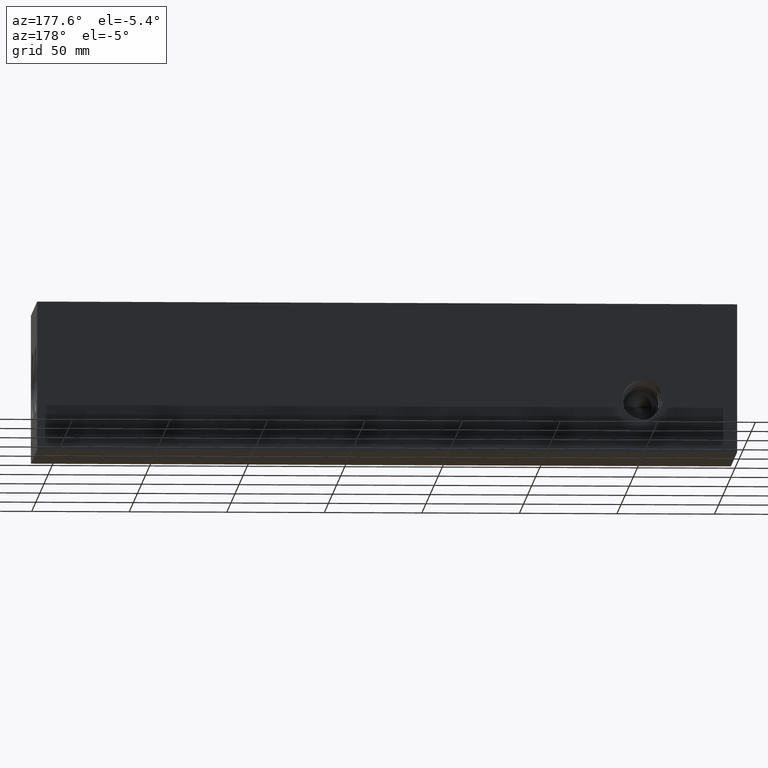
[diagram: clean part render]
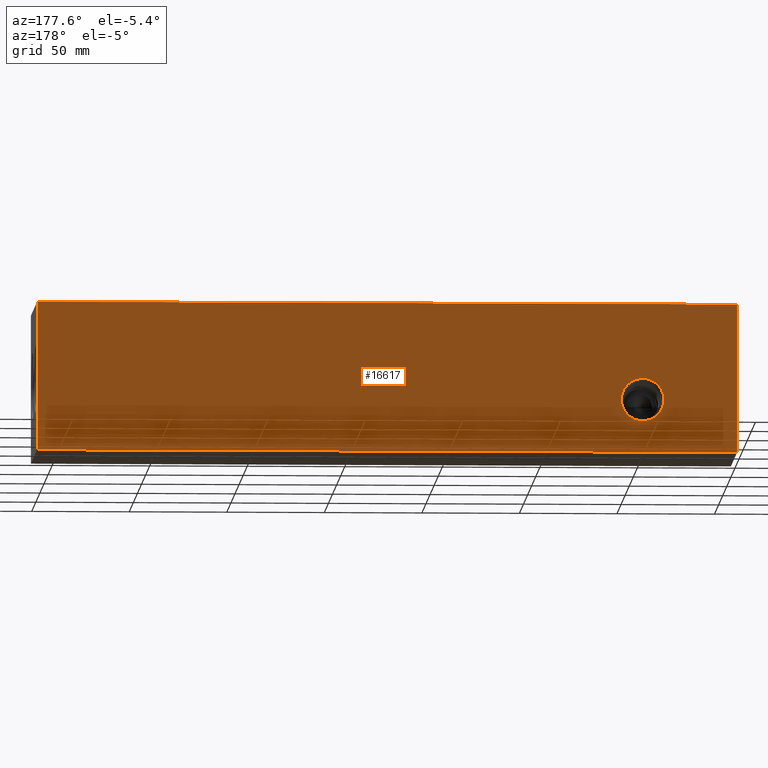
[diagram: same view with one face highlighted and labeled with its STEP entity id]
A machine part, auxiliary view. The second image highlights one B-rep face of the part: STEP entity #16617.
In plain terms, the highlighted planar face has unit normal (0, 1, 0).
Its self-contained STEP definition (entity closure, byte-faithful):
#280=CIRCLE('',#17066,10.9093);
#281=CIRCLE('',#17067,10.9093);
#865=FACE_BOUND('',#3311,.T.);
#2319=FACE_OUTER_BOUND('',#3310,.T.);
#3310=EDGE_LOOP('',(#14652,#14653,#14654,#14655));
#3311=EDGE_LOOP('',(#14656,#14657));
#4473=LINE('',#26952,#5913);
#4533=LINE('',#27225,#5973);
#4790=LINE('',#28782,#6230);
#4791=LINE('',#28783,#6231);
#5913=VECTOR('',#19706,10.);
#5973=VECTOR('',#19820,10.);
#6230=VECTOR('',#21599,10.);
#6231=VECTOR('',#21600,10.);
#7234=VERTEX_POINT('',#26949);
#7235=VERTEX_POINT('',#26951);
#7292=VERTEX_POINT('',#27221);
#7293=VERTEX_POINT('',#27223);
#7318=VERTEX_POINT('',#27292);
#7319=VERTEX_POINT('',#27293);
#9326=EDGE_CURVE('',#7234,#7235,#4473,.T.);
#9410=EDGE_CURVE('',#7292,#7293,#4533,.T.);
#9443=EDGE_CURVE('',#7318,#7319,#280,.T.);
#9444=EDGE_CURVE('',#7319,#7318,#281,.T.);
#10136=EDGE_CURVE('',#7234,#7292,#4790,.T.);
#10137=EDGE_CURVE('',#7235,#7293,#4791,.T.);
#14652=ORIENTED_EDGE('',*,*,#10136,.T.);
#14653=ORIENTED_EDGE('',*,*,#9410,.T.);
#14654=ORIENTED_EDGE('',*,*,#10137,.F.);
#14655=ORIENTED_EDGE('',*,*,#9326,.F.);
#14656=ORIENTED_EDGE('',*,*,#9443,.T.);
#14657=ORIENTED_EDGE('',*,*,#9444,.T.);
#15193=PLANE('',#17808);
#16617=ADVANCED_FACE('',(#2319,#865),#15193,.T.);
#17066=AXIS2_PLACEMENT_3D('',#27294,#19881,#19882);
#17067=AXIS2_PLACEMENT_3D('',#27295,#19883,#19884);
#17808=AXIS2_PLACEMENT_3D('',#28781,#21597,#21598);
#19706=DIRECTION('',(0.,0.,1.));
#19820=DIRECTION('',(0.,0.,1.));
#19881=DIRECTION('center_axis',(0.,-1.,0.));
#19882=DIRECTION('ref_axis',(1.,0.,0.));
#19883=DIRECTION('center_axis',(0.,-1.,0.));
#19884=DIRECTION('ref_axis',(1.,0.,0.));
#21597=DIRECTION('center_axis',(0.,1.,0.));
#21598=DIRECTION('ref_axis',(-1.,0.,0.));
#21599=DIRECTION('',(-1.,0.,0.));
#21600=DIRECTION('',(-1.,0.,0.));
#26949=CARTESIAN_POINT('',(358.775,76.2,0.));
#26951=CARTESIAN_POINT('',(358.775,76.2,76.2));
#26952=CARTESIAN_POINT('',(358.775,76.2,0.));
#27221=CARTESIAN_POINT('',(0.,76.2,0.));
#27223=CARTESIAN_POINT('',(0.,76.2,76.2));
#27225=CARTESIAN_POINT('',(0.,76.2,0.));
#27292=CARTESIAN_POINT('',(59.3217,76.2,27.0002));
#27293=CARTESIAN_POINT('',(37.5031,76.2,27.0002));
#27294=CARTESIAN_POINT('Origin',(48.4124,76.2,27.0002));
#27295=CARTESIAN_POINT('Origin',(48.4124,76.2,27.0002));
#28781=CARTESIAN_POINT('Origin',(358.775,76.2,0.));
#28782=CARTESIAN_POINT('',(358.775,76.2,0.));
#28783=CARTESIAN_POINT('',(358.775,76.2,76.2));